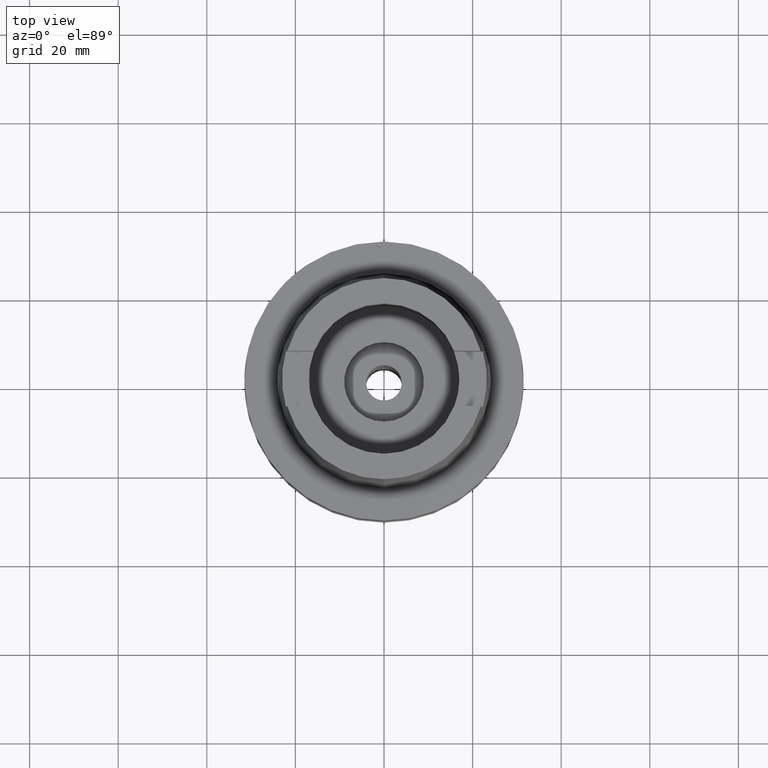
[diagram: clean part render]
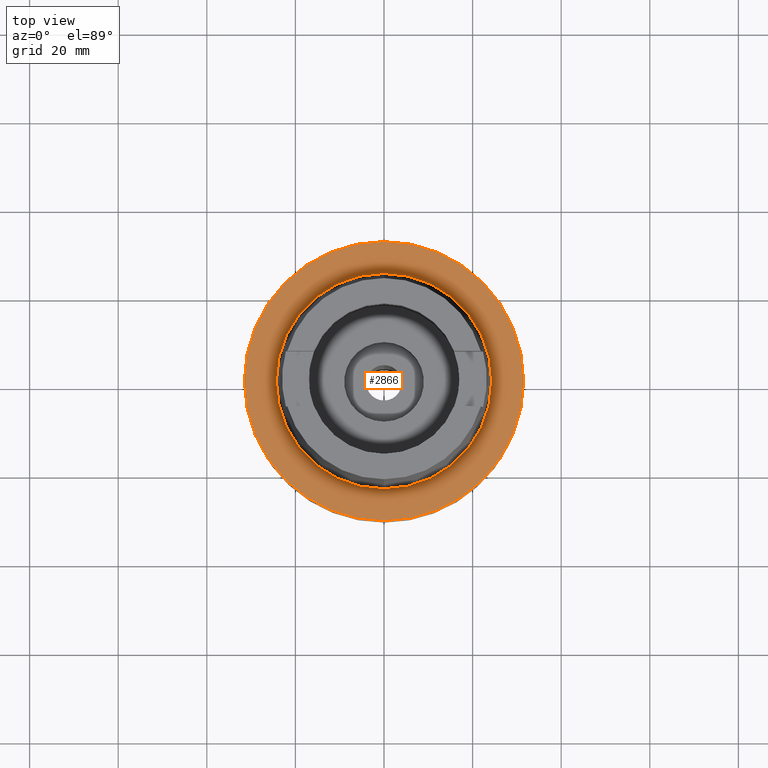
[diagram: same view with one face highlighted and labeled with its STEP entity id]
A machine part, top view. The second image highlights one B-rep face of the part: STEP entity #2866.
In plain terms, the highlighted planar face has unit normal (0, 0, -1).
Its self-contained STEP definition (entity closure, byte-faithful):
#591=CARTESIAN_POINT('',(0.E0,1.701646727415E-14,4.263256414561E-14));
#592=DIRECTION('',(0.E0,0.E0,-1.E0));
#593=DIRECTION('',(0.E0,-1.E0,0.E0));
#594=AXIS2_PLACEMENT_3D('',#591,#592,#593);
#599=CARTESIAN_POINT('',(0.E0,1.701646727415E-14,4.263256414561E-14));
#600=DIRECTION('',(0.E0,0.E0,-1.E0));
#601=DIRECTION('',(0.E0,1.E0,0.E0));
#602=AXIS2_PLACEMENT_3D('',#599,#600,#601);
#607=CARTESIAN_POINT('',(0.E0,1.420590287011E-14,9.094947017729E-13));
#608=DIRECTION('',(0.E0,0.E0,1.E0));
#609=DIRECTION('',(0.E0,-1.E0,0.E0));
#610=AXIS2_PLACEMENT_3D('',#607,#608,#609);
#615=CARTESIAN_POINT('',(0.E0,1.420590287011E-14,9.094947017729E-13));
#616=DIRECTION('',(0.E0,0.E0,1.E0));
#617=DIRECTION('',(0.E0,1.E0,0.E0));
#618=AXIS2_PLACEMENT_3D('',#615,#616,#617);
#2222=CARTESIAN_POINT('',(0.E0,2.431503482329E1,4.156675004197E-13));
#2223=VERTEX_POINT('',#2222);
#2224=CARTESIAN_POINT('',(0.E0,-2.431503482329E1,9.094947017729E-13));
#2225=VERTEX_POINT('',#2224);
#2228=CARTESIAN_POINT('',(0.E0,-3.15E1,4.263256414561E-14));
#2229=CARTESIAN_POINT('',(0.E0,3.15E1,4.263256414561E-14));
#2230=VERTEX_POINT('',#2228);
#2231=VERTEX_POINT('',#2229);
#2851=CARTESIAN_POINT('',(0.E0,1.224646799147E-14,0.E0));
#2852=DIRECTION('',(0.E0,0.E0,-1.E0));
#2853=DIRECTION('',(0.E0,-1.E0,0.E0));
#2854=AXIS2_PLACEMENT_3D('',#2851,#2852,#2853);
#2855=PLANE('',#2854);
#2857=ORIENTED_EDGE('',*,*,#2856,.T.);
#2859=ORIENTED_EDGE('',*,*,#2858,.T.);
#2860=EDGE_LOOP('',(#2857,#2859));
#2861=FACE_OUTER_BOUND('',#2860,.F.);
#2862=ORIENTED_EDGE('',*,*,#2839,.T.);
#2863=ORIENTED_EDGE('',*,*,#2776,.T.);
#2864=EDGE_LOOP('',(#2862,#2863));
#2865=FACE_BOUND('',#2864,.F.);
#595=CIRCLE('',#594,3.15E1);
#603=CIRCLE('',#602,3.15E1);
#611=CIRCLE('',#610,2.431503482329E1);
#619=CIRCLE('',#618,2.431503482329E1);
#2776=EDGE_CURVE('',#2223,#2225,#619,.T.);
#2839=EDGE_CURVE('',#2225,#2223,#611,.T.);
#2856=EDGE_CURVE('',#2230,#2231,#595,.T.);
#2858=EDGE_CURVE('',#2231,#2230,#603,.T.);
#2866=ADVANCED_FACE('',(#2861,#2865),#2855,.F.);